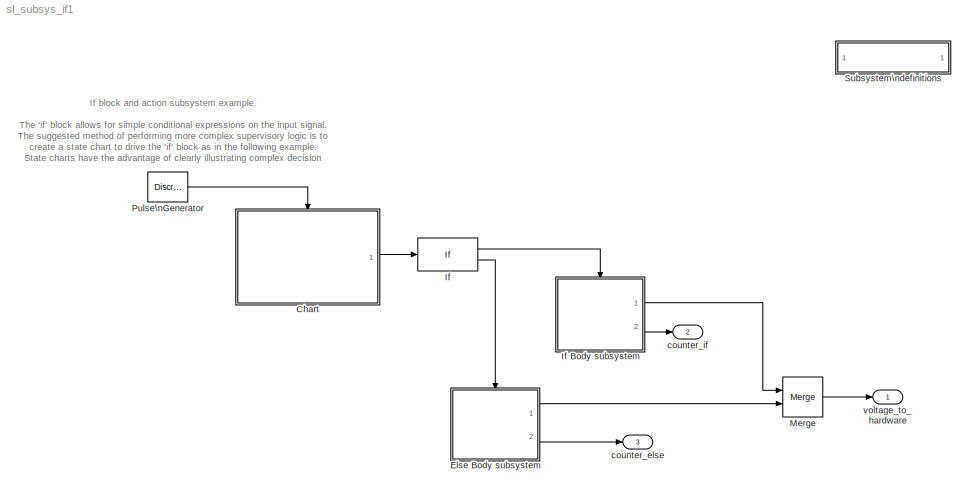
MODEL sl_subsys_if1
KIND model
BLOCK [SubSystem]  Subsystem\ndefinitions
  MaskDisplay = disp('Subsystem\\ndefinitions')\n\n
  MaskIconFrame = on
  MaskIconOpaque = on
  MaskIconRotate = none
  MaskIconUnits = autoscale
  MinAlgLoopOccurrences = off
  OpenFcn = helpview([matlabroot,'/toolbox/simulink/simdemos/sl_subsys_definitions.html']);
  Ports = []
  PropExecContextAcrossSSBoundary = on
  RTWSystemCode = Auto
  TreatAsAtomicUnit = off
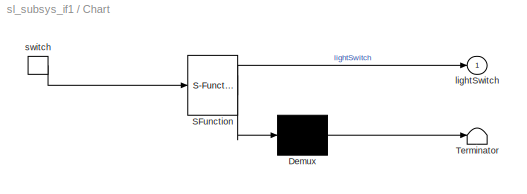
BLOCK [SubSystem] Chart
  MaskDescription = Stateflow diagram
  MaskDisplay = plot(sf('Private','sfblk','xIcon'),sf('Private','sfblk','yIcon'));text(0.5,0,sf('Private', 'sfblk', 'tIcon'),'HorizontalAl','Center','VerticalAl','Bottom');
  MaskIconFrame = off
  MaskIconOpaque = off
  MaskIconRotate = none
  MaskIconUnits = autoscale
  MaskSelfModifiable = on
  MaskType = Stateflow
  MinAlgLoopOccurrences = off
  Ports = [0, 1, 0, 1]
  PropExecContextAcrossSSBoundary = on
  RTWSystemCode = Auto
  TreatAsAtomicUnit = on
BLOCK [Demux] Chart/ Demux 
  Outputs = 1
  Ports = [1, 1]
BLOCK [S-Function] Chart/ SFunction 
  FunctionName = sf_sfun
  PortCounts = [1 2]
  Ports = [1, 2]
  Tag = Stateflow S-Function sl_subsys_if1 1
BLOCK [Terminator] Chart/ Terminator 
BLOCK [Outport] Chart/lightSwitch
  IconDisplay = Port number
BLOCK [TriggerPort] Chart/switch
  Ports = [0, 1]
  ShowOutputPort = on
  TriggerType = either
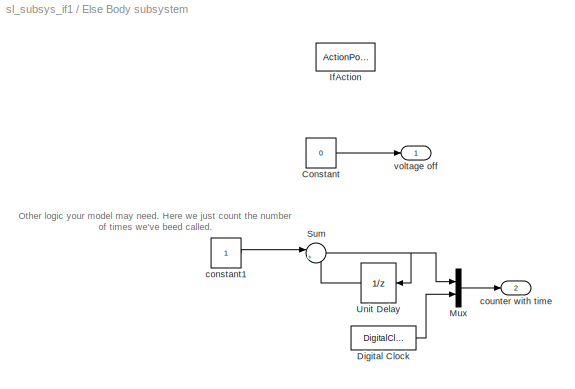
BLOCK [SubSystem] Else Body subsystem
  MinAlgLoopOccurrences = off
  Ports = [0, 2, 0, 0, 0, 0, 0, 1]
  PropExecContextAcrossSSBoundary = on
  RTWSystemCode = Auto
  TreatAsAtomicUnit = on
BLOCK [Constant] Else Body subsystem/Constant
  Value = 0
BLOCK [DigitalClock] Else Body subsystem/Digital Clock
BLOCK [ActionPort] Else Body subsystem/IfAction
  ActionType = else
BLOCK [Mux] Else Body subsystem/Mux
  DisplayOption = bar
  Inputs = 2
  Ports = [2, 1]
BLOCK [Sum] Else Body subsystem/Sum
  IconShape = round
  Inputs = |++
  Ports = [2, 1]
BLOCK [UnitDelay] Else Body subsystem/Unit Delay
BLOCK [Constant] Else Body subsystem/constant1
BLOCK [Outport] Else Body subsystem/counter with time
  IconDisplay = Port number
  Port = 2
BLOCK [Outport] Else Body subsystem/voltage off
  IconDisplay = Port number
BLOCK [If] If
  IfExpression = u1 ~= 0
  Ports = [1, 2]
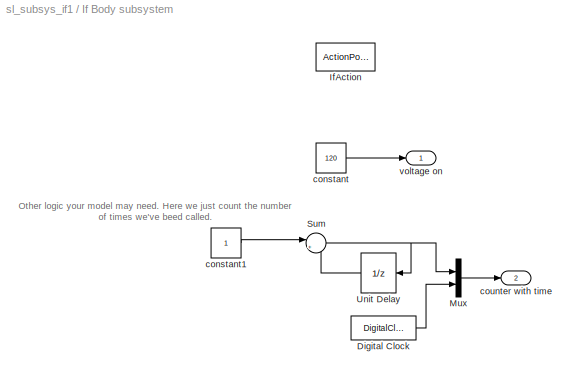
BLOCK [SubSystem] If Body subsystem
  MinAlgLoopOccurrences = off
  Ports = [0, 2, 0, 0, 0, 0, 0, 1]
  PropExecContextAcrossSSBoundary = on
  RTWSystemCode = Auto
  TreatAsAtomicUnit = on
BLOCK [DigitalClock] If Body subsystem/Digital Clock
BLOCK [ActionPort] If Body subsystem/IfAction
  ActionType = then
BLOCK [Mux] If Body subsystem/Mux
  DisplayOption = bar
  Inputs = 2
  Ports = [2, 1]
BLOCK [Sum] If Body subsystem/Sum
  IconShape = round
  Inputs = |++
  Ports = [2, 1]
BLOCK [UnitDelay] If Body subsystem/Unit Delay
BLOCK [Constant] If Body subsystem/constant
  Value = 120
BLOCK [Constant] If Body subsystem/constant1
BLOCK [Outport] If Body subsystem/counter with time
  IconDisplay = Port number
  Port = 2
BLOCK [Outport] If Body subsystem/voltage on
  IconDisplay = Port number
BLOCK [Merge] Merge
  Ports = [2, 1]
BLOCK [DiscretePulseGenerator] Pulse\nGenerator
  Ports = [0, 1]
BLOCK [Outport] counter_else
  IconDisplay = Port number
  Port = 3
BLOCK [Outport] counter_if
  IconDisplay = Port number
  Port = 2
BLOCK [Outport] voltage_to_hardware
  IconDisplay = Port number
ANNOTATION (root): If block and action subsystem example.\n\nThe 'if' block allows for simple conditional expressions on the input signal.\nThe suggested method of performing more complex supervisory logic is to\ncreate a state chart to drive the 'if' block as in the following example.\nState charts have the advantage of clearly illustrating complex decision\nlogic.
ANNOTATION Else Body subsystem: Other logic your model may need. Here we just count the number\nof times we've beed called.
ANNOTATION If Body subsystem: Other logic your model may need. Here we just count the number\nof times we've beed called.
LINE Chart/ Demux :1 -> Chart/ Terminator :1
LINE Chart/ SFunction :1 -> Chart/ Demux :1
LINE Chart/ SFunction :2 -> Chart/lightSwitch:1
LINE Chart/switch:1 -> Chart/ SFunction :1
LINE Chart:1 -> If:1
LINE Else Body subsystem/Constant:1 -> Else Body subsystem/voltage off:1
LINE Else Body subsystem/Digital Clock:1 -> Else Body subsystem/Mux:2
LINE Else Body subsystem/Mux:1 -> Else Body subsystem/counter with time:1
NET Else Body subsystem/Sum:1 -> Else Body subsystem/Mux:1, Else Body subsystem/Unit Delay:1
LINE Else Body subsystem/Unit Delay:1 -> Else Body subsystem/Sum:2
LINE Else Body subsystem/constant1:1 -> Else Body subsystem/Sum:1
LINE Else Body subsystem:1 -> Merge:2
LINE Else Body subsystem:2 -> counter_else:1
LINE If Body subsystem/Digital Clock:1 -> If Body subsystem/Mux:2
LINE If Body subsystem/Mux:1 -> If Body subsystem/counter with time:1
NET If Body subsystem/Sum:1 -> If Body subsystem/Mux:1, If Body subsystem/Unit Delay:1
LINE If Body subsystem/Unit Delay:1 -> If Body subsystem/Sum:2
LINE If Body subsystem/constant1:1 -> If Body subsystem/Sum:1
LINE If Body subsystem/constant:1 -> If Body subsystem/voltage on:1
LINE If Body subsystem:1 -> Merge:1
LINE If Body subsystem:2 -> counter_if:1
LINE If:1 -> If Body subsystem:ifaction
LINE If:2 -> Else Body subsystem:ifaction
LINE Merge:1 -> voltage_to_hardware:1
LINE Pulse\nGenerator:1 -> Chart:trigger
note: NET lines group one-source signal fan-out (src -> all destinations, sorted); 1:1 wires keep LINE
CHART Chart states=2 transitions=3
  STATE_LABEL 'on'
  STATE_LABEL 'off'
